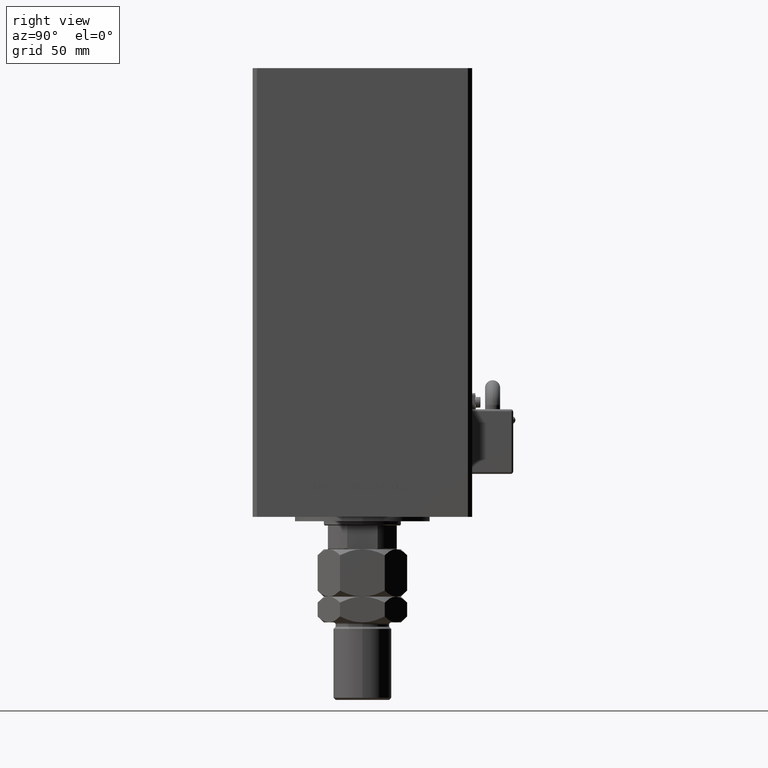
[diagram: clean part render]
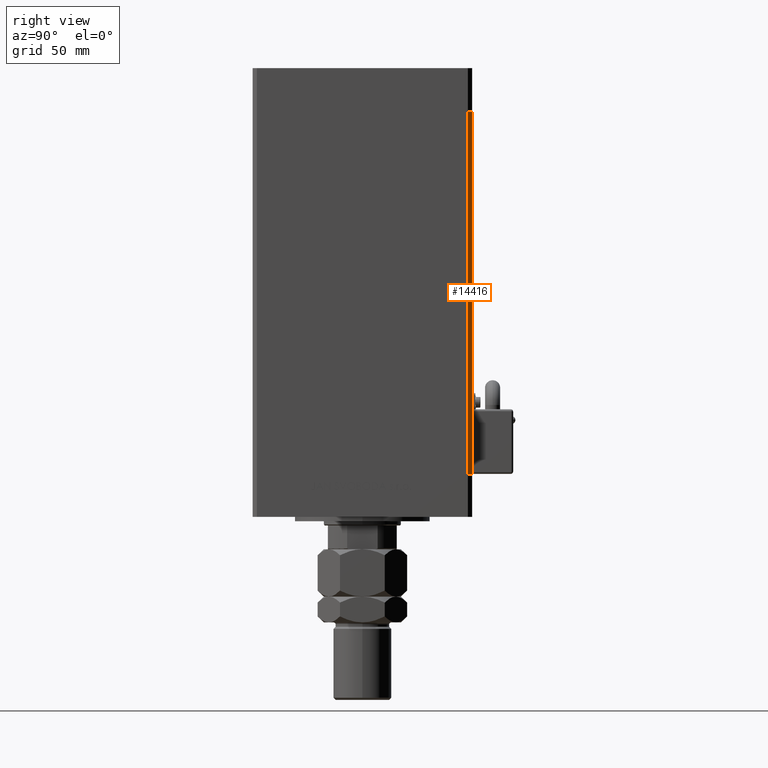
[diagram: same view with one face highlighted and labeled with its STEP entity id]
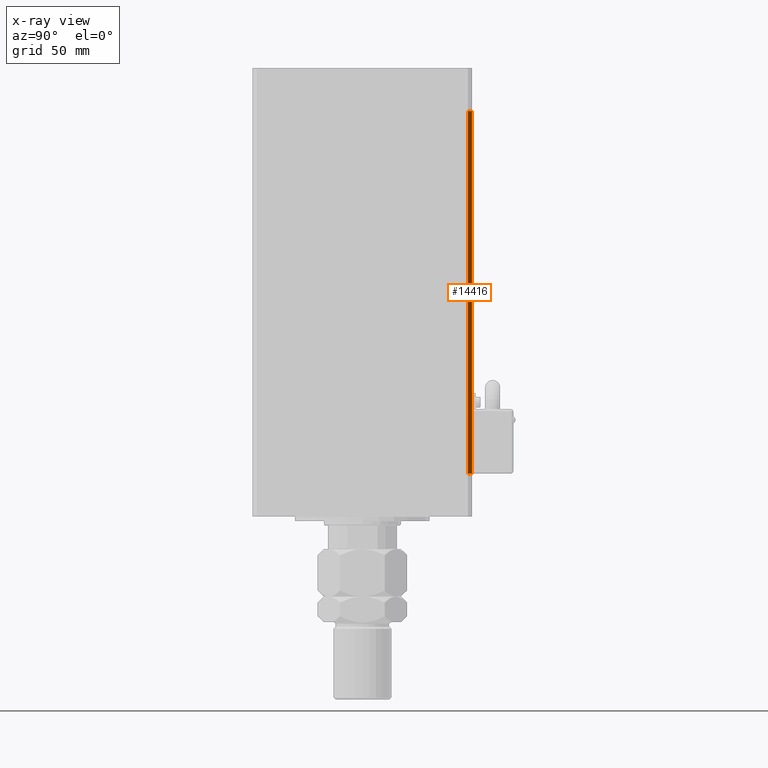
[diagram: x-ray of the same camera — body ghosted, the highlighted face saturated]
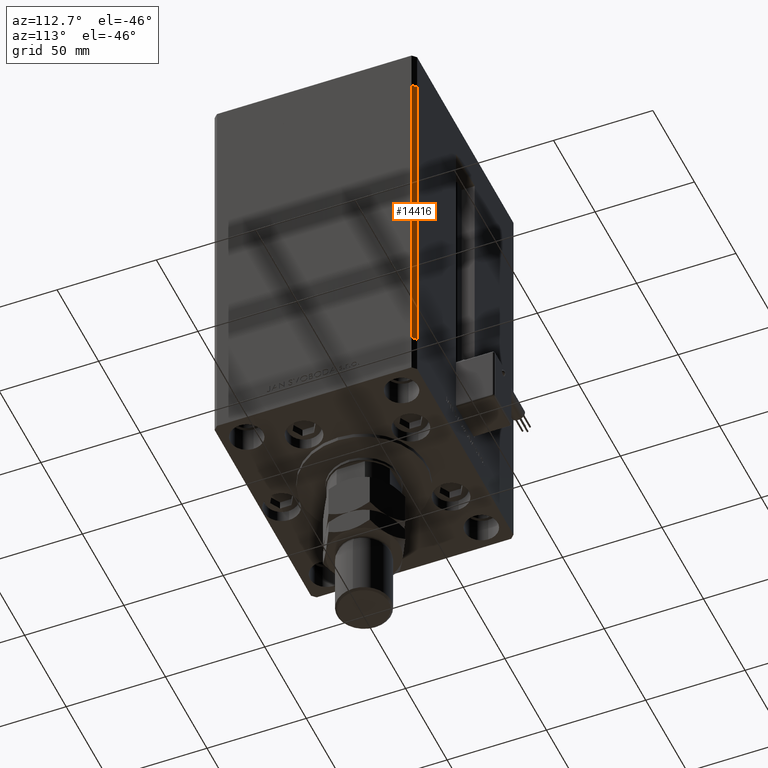
[diagram: same view with one face highlighted and labeled with its STEP entity id]
A machine part, right view. The second image highlights one B-rep face of the part: STEP entity #14416.
The next image is the same camera in x-ray: the body ghosted, the highlighted face saturated — about 0% of this face is hidden behind the body in this view.
A second angle (auxiliary view) of the same face is appended — the face is thin or edge-on in the first view.
In plain terms, the highlighted planar face has unit normal (0.7071, 0.7071, 0).
Its self-contained STEP definition (entity closure, byte-faithful):
#5240 = ORIENTED_EDGE ( 'NONE', *, *, #11462, .F. ) ;
#5851 = DIRECTION ( 'NONE',  ( 0.7071067811865451302, 0.7071067811865500152, -0.000000000000000000 ) ) ;
#5964 = CARTESIAN_POINT ( 'NONE',  ( 57.99999999999999289, 51.00000000000000711, 0.000000000000000000 ) ) ;
#6847 = VERTEX_POINT ( 'NONE', #48008 ) ;
#8693 = EDGE_CURVE ( 'NONE', #34524, #16114, #39150, .T. ) ;
#9278 = CARTESIAN_POINT ( 'NONE',  ( 57.99999999999999289, 51.00000000000000711, 0.000000000000000000 ) ) ;
#9383 = CARTESIAN_POINT ( 'NONE',  ( 60.00000000000001421, 49.00000000000000000, 0.000000000000000000 ) ) ;
#10474 = CARTESIAN_POINT ( 'NONE',  ( 57.99999999999999289, 51.00000000000000711, 168.5000000000000000 ) ) ;
#10864 = CARTESIAN_POINT ( 'NONE',  ( 60.00000000000001421, 49.00000000000000000, 168.5000000000000000 ) ) ;
#11462 = EDGE_CURVE ( 'NONE', #25937, #16114, #34015, .T. ) ;
#12724 = VECTOR ( 'NONE', #50341, 1000.000000000000114 ) ;
#14267 = PLANE ( 'NONE',  #47474 ) ;
#14416 = ADVANCED_FACE ( 'NONE', ( #43914 ), #14267, .T. ) ;
#15816 = DIRECTION ( 'NONE',  ( -0.000000000000000000, -0.000000000000000000, -1.000000000000000000 ) ) ;
#16083 = CARTESIAN_POINT ( 'NONE',  ( 57.99999999999999289, 51.00000000000000711, 168.5000000000000000 ) ) ;
#16114 = VERTEX_POINT ( 'NONE', #9383 ) ;
#23225 = EDGE_CURVE ( 'NONE', #6847, #34524, #43376, .T. ) ;
#25937 = VERTEX_POINT ( 'NONE', #5964 ) ;
#26909 = DIRECTION ( 'NONE',  ( -0.000000000000000000, -0.000000000000000000, -1.000000000000000000 ) ) ;
#28249 = CARTESIAN_POINT ( 'NONE',  ( 60.00000000000001421, 49.00000000000000000, 168.5000000000000000 ) ) ;
#30135 = EDGE_LOOP ( 'NONE', ( #5240, #34331, #37769, #43710 ) ) ;
#33996 = VECTOR ( 'NONE', #39035, 1000.000000000000114 ) ;
#34015 = LINE ( 'NONE', #9278, #12724 ) ;
#34331 = ORIENTED_EDGE ( 'NONE', *, *, #37309, .F. ) ;
#34524 = VERTEX_POINT ( 'NONE', #28249 ) ;
#34934 = DIRECTION ( 'NONE',  ( -0.7071067811865500152, 0.7071067811865451302, 0.000000000000000000 ) ) ;
#36756 = LINE ( 'NONE', #16083, #48018 ) ;
#37309 = EDGE_CURVE ( 'NONE', #6847, #25937, #36756, .T. ) ;
#37769 = ORIENTED_EDGE ( 'NONE', *, *, #23225, .T. ) ;
#39035 = DIRECTION ( 'NONE',  ( 0.7071067811865500152, -0.7071067811865451302, 0.000000000000000000 ) ) ;
#39150 = LINE ( 'NONE', #10864, #49093 ) ;
#43376 = LINE ( 'NONE', #10474, #33996 ) ;
#43638 = CARTESIAN_POINT ( 'NONE',  ( 57.99999999999999289, 51.00000000000000711, 168.5000000000000000 ) ) ;
#43710 = ORIENTED_EDGE ( 'NONE', *, *, #8693, .T. ) ;
#43914 = FACE_OUTER_BOUND ( 'NONE', #30135, .T. ) ;
#47474 = AXIS2_PLACEMENT_3D ( 'NONE', #43638, #5851, #34934 ) ;
#48008 = CARTESIAN_POINT ( 'NONE',  ( 57.99999999999999289, 51.00000000000000711, 168.5000000000000000 ) ) ;
#48018 = VECTOR ( 'NONE', #15816, 1000.000000000000000 ) ;
#49093 = VECTOR ( 'NONE', #26909, 1000.000000000000000 ) ;
#50341 = DIRECTION ( 'NONE',  ( 0.7071067811865500152, -0.7071067811865451302, 0.000000000000000000 ) ) ;